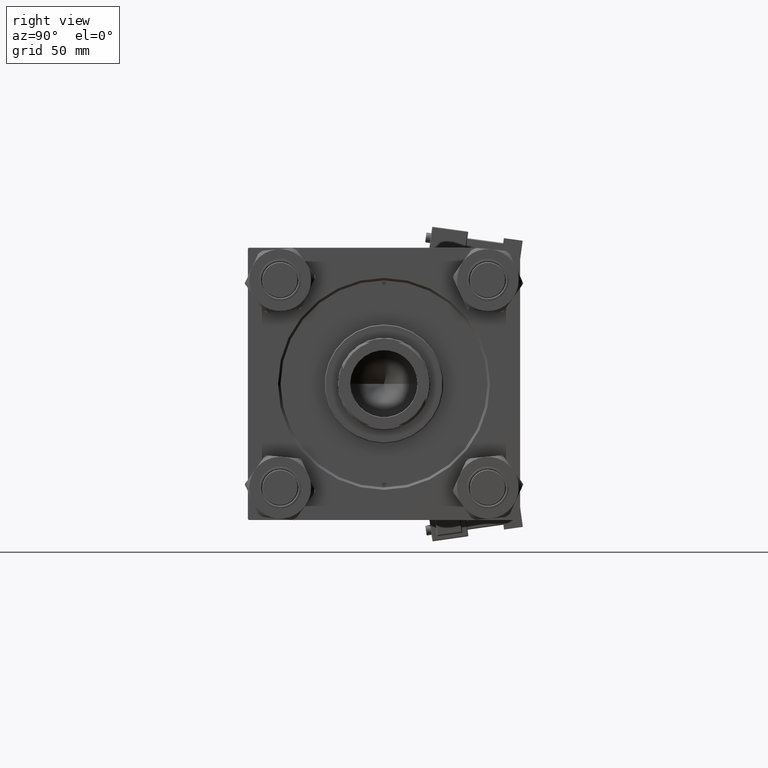
[diagram: clean part render]
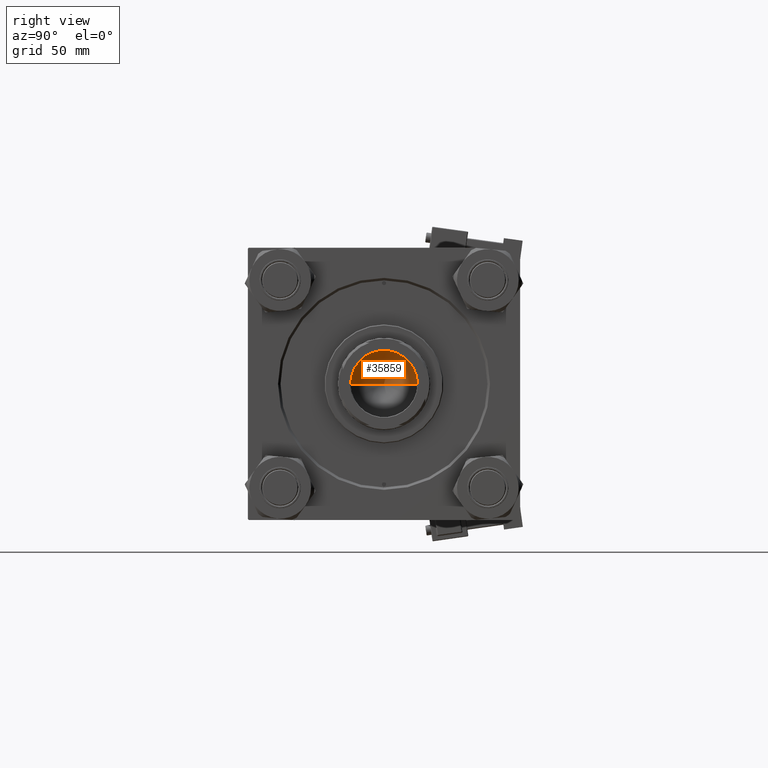
[diagram: same view with one face highlighted and labeled with its STEP entity id]
A machine part, right view. The second image highlights one B-rep face of the part: STEP entity #35859.
In plain terms, the highlighted conical surface has half-angle 59 deg.
Its self-contained STEP definition (entity closure, byte-faithful):
#1234 = ORIENTED_EDGE ( 'NONE', *, *, #13187, .T. ) ;
#1945 = CARTESIAN_POINT ( 'NONE',  ( -20.24999999999998934, 2.479909768273389117E-15, 166.0000000000000000 ) ) ;
#3934 = VECTOR ( 'NONE', #38133, 1000.000000000000000 ) ;
#5650 = CIRCLE ( 'NONE', #6500, 20.24999999999998934 ) ;
#6500 = AXIS2_PLACEMENT_3D ( 'NONE', #31396, #35122, #39124 ) ;
#9068 = EDGE_LOOP ( 'NONE', ( #50186, #1234, #20562 ) ) ;
#9326 = VERTEX_POINT ( 'NONE', #50531 ) ;
#9577 = VERTEX_POINT ( 'NONE', #30155 ) ;
#9593 = DIRECTION ( 'NONE',  ( -0.000000000000000000, -0.000000000000000000, 1.000000000000000000 ) ) ;
#13187 = EDGE_CURVE ( 'NONE', #41241, #9577, #36612, .T. ) ;
#13585 = EDGE_CURVE ( 'NONE', #9577, #9326, #5650, .T. ) ;
#13684 = CARTESIAN_POINT ( 'NONE',  ( -1.584115414415908206E-14, 0.000000000000000000, 153.8325724646919070 ) ) ;
#14358 = VECTOR ( 'NONE', #26320, 1000.000000000000000 ) ;
#20562 = ORIENTED_EDGE ( 'NONE', *, *, #13585, .T. ) ;
#23090 = CONICAL_SURFACE ( 'NONE', #28165, 20.24999999999998934, 1.029744258676653423 ) ;
#23776 = EDGE_CURVE ( 'NONE', #41241, #9326, #50296, .T. ) ;
#26320 = DIRECTION ( 'NONE',  ( 0.8571673007021117785, 0.000000000000000000, 0.5150380749100550437 ) ) ;
#28165 = AXIS2_PLACEMENT_3D ( 'NONE', #33275, #9593, #49532 ) ;
#30155 = CARTESIAN_POINT ( 'NONE',  ( -20.24999999999998934, 2.479909768273389117E-15, 166.0000000000000000 ) ) ;
#31396 = CARTESIAN_POINT ( 'NONE',  ( 0.000000000000000000, 0.000000000000000000, 166.0000000000000000 ) ) ;
#33009 = FACE_OUTER_BOUND ( 'NONE', #9068, .T. ) ;
#33275 = CARTESIAN_POINT ( 'NONE',  ( 0.000000000000000000, 0.000000000000000000, 166.0000000000000000 ) ) ;
#35122 = DIRECTION ( 'NONE',  ( -0.000000000000000000, -0.000000000000000000, 1.000000000000000000 ) ) ;
#35859 = ADVANCED_FACE ( 'NONE', ( #33009 ), #23090, .F. ) ;
#36612 = LINE ( 'NONE', #1945, #3934 ) ;
#38133 = DIRECTION ( 'NONE',  ( -0.8571673007021117785, 1.049727191138617956E-16, 0.5150380749100550437 ) ) ;
#39124 = DIRECTION ( 'NONE',  ( 1.000000000000000000, 0.000000000000000000, 0.000000000000000000 ) ) ;
#41241 = VERTEX_POINT ( 'NONE', #13684 ) ;
#46561 = CARTESIAN_POINT ( 'NONE',  ( 20.24999999999998934, 0.000000000000000000, 166.0000000000000000 ) ) ;
#49532 = DIRECTION ( 'NONE',  ( 1.000000000000000000, 0.000000000000000000, 0.000000000000000000 ) ) ;
#50186 = ORIENTED_EDGE ( 'NONE', *, *, #23776, .F. ) ;
#50296 = LINE ( 'NONE', #46561, #14358 ) ;
#50531 = CARTESIAN_POINT ( 'NONE',  ( 20.24999999999998934, 0.000000000000000000, 166.0000000000000000 ) ) ;